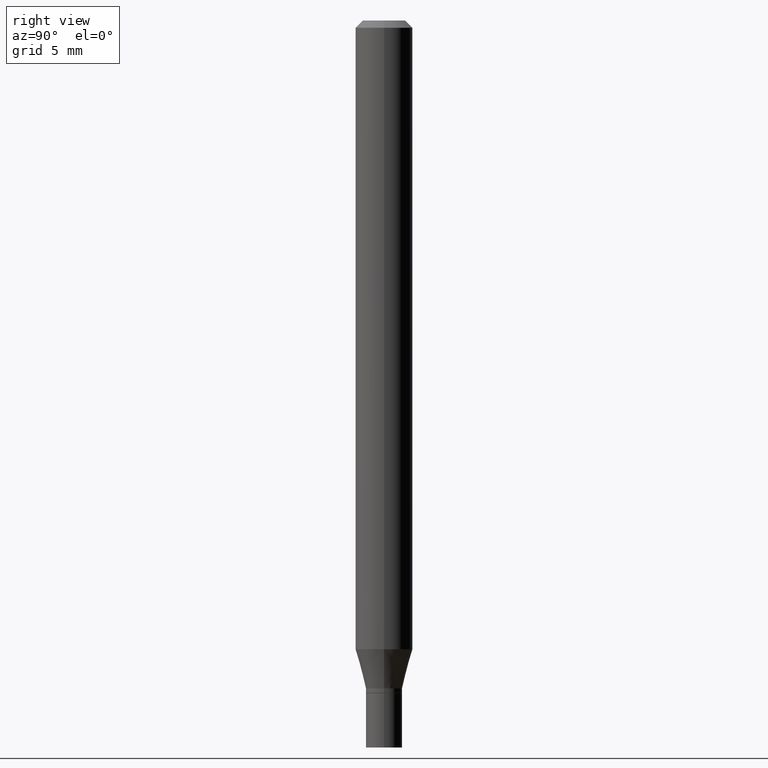
[diagram: clean part render]
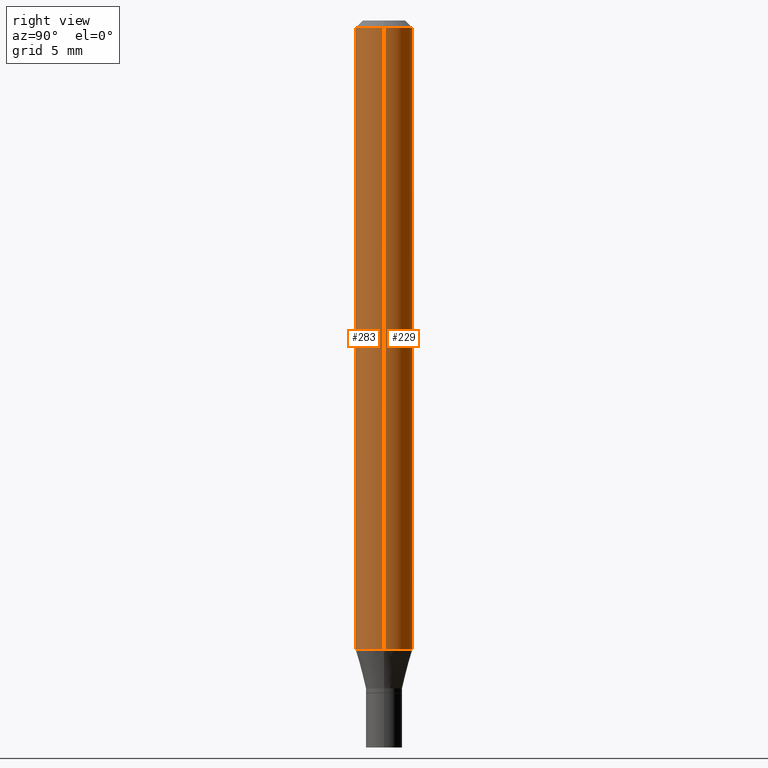
[diagram: same view with one multi-face feature highlighted, each face labeled with its STEP entity id]
A machine part, right view. The highlighted faces form ONE feature: a constant-radius fillet chain: 2 tangent blend faces with common blend radius 1.4999 mm. The faces share edges in the B-rep.
Their STEP definitions:
[1] entity #229 (Cylinder):
#1 = VECTOR ( 'NONE', #28, 39.37007874015748143 ) ;
#16 = CYLINDRICAL_SURFACE ( 'NONE', #210, 0.05904999999999999832 ) ;
#27 = LINE ( 'NONE', #166, #388 ) ;
#28 = DIRECTION ( 'NONE',  ( -2.445468806185136877E-29, 3.491481338843145188E-15, 1.000000000000000000 ) ) ;
#29 = AXIS2_PLACEMENT_3D ( 'NONE', #214, #138, #256 ) ;
#33 = DIRECTION ( 'NONE',  ( -2.445468806185136597E-29, 3.491481338843145583E-15, 1.000000000000000000 ) ) ;
#44 = FACE_OUTER_BOUND ( 'NONE', #58, .T. ) ;
#52 = DIRECTION ( 'NONE',  ( -2.445468806185136597E-29, 3.491481338843145583E-15, 1.000000000000000000 ) ) ;
#58 = EDGE_LOOP ( 'NONE', ( #87, #448, #111, #436 ) ) ;
#87 = ORIENTED_EDGE ( 'NONE', *, *, #288, .T. ) ;
#91 = LINE ( 'NONE', #343, #1 ) ;
#95 = CARTESIAN_POINT ( 'NONE',  ( 0.05904999999999999832, -4.647161662000212105E-16, -0.01499999999999999944 ) ) ;
#111 = ORIENTED_EDGE ( 'NONE', *, *, #188, .F. ) ;
#134 = AXIS2_PLACEMENT_3D ( 'NONE', #172, #33, #168 ) ;
#138 = DIRECTION ( 'NONE',  ( -2.445468806185136597E-29, 3.491481338843145583E-15, 1.000000000000000000 ) ) ;
#160 = DIRECTION ( 'NONE',  ( 1.000000000000000000, -6.982962677686266711E-15, 4.876176775795936353E-29 ) ) ;
#163 = CARTESIAN_POINT ( 'NONE',  ( 0.05904999999999999832, -4.941497379550503120E-15, -1.297201100016132980 ) ) ;
#166 = CARTESIAN_POINT ( 'NONE',  ( 0.05904999999999999832, -4.123439461173740327E-16, 2.879382386107500220E-30 ) ) ;
#168 = DIRECTION ( 'NONE',  ( 1.000000000000000000, -6.982962677686273021E-15, 0.000000000000000000 ) ) ;
#172 = CARTESIAN_POINT ( 'NONE',  ( 3.172264825438498801E-29, -4.529153433433129778E-15, -1.297201100016132980 ) ) ;
#188 = EDGE_CURVE ( 'NONE', #297, #332, #190, .T. ) ;
#190 = CIRCLE ( 'NONE', #29, 0.05904999999999999832 ) ;
#196 = CARTESIAN_POINT ( 'NONE',  ( -0.05904999999999999832, -1.871187341291549133E-15, -0.01499999999999999944 ) ) ;
#197 = CARTESIAN_POINT ( 'NONE',  ( 0.000000000000000000, 0.000000000000000000, 0.000000000000000000 ) ) ;
#210 = AXIS2_PLACEMENT_3D ( 'NONE', #197, #52, #160 ) ;
#214 = CARTESIAN_POINT ( 'NONE',  ( 3.668203209277705088E-31, -5.237222008264718399E-17, -0.01499999999999999944 ) ) ;
#229 = ADVANCED_FACE ( 'NONE', ( #44 ), #16, .T. ) ;
#242 = DIRECTION ( 'NONE',  ( -2.445468806185136877E-29, 3.491481338843145188E-15, 1.000000000000000000 ) ) ;
#256 = DIRECTION ( 'NONE',  ( 1.000000000000000000, -6.982962677686266711E-15, 0.000000000000000000 ) ) ;
#288 = EDGE_CURVE ( 'NONE', #400, #409, #434, .T. ) ;
#297 = VERTEX_POINT ( 'NONE', #95 ) ;
#332 = VERTEX_POINT ( 'NONE', #196 ) ;
#340 = EDGE_CURVE ( 'NONE', #409, #332, #91, .T. ) ;
#343 = CARTESIAN_POINT ( 'NONE',  ( -0.05904999999999999832, 4.195754854663391478E-16, -2.904631170795521892E-30 ) ) ;
#386 = CARTESIAN_POINT ( 'NONE',  ( -0.05904999999999999832, -4.109577947966790285E-15, -1.297201100016132980 ) ) ;
#388 = VECTOR ( 'NONE', #242, 39.37007874015748143 ) ;
#400 = VERTEX_POINT ( 'NONE', #163 ) ;
#409 = VERTEX_POINT ( 'NONE', #386 ) ;
#421 = EDGE_CURVE ( 'NONE', #400, #297, #27, .T. ) ;
#434 = CIRCLE ( 'NONE', #134, 0.05904999999999999832 ) ;
#436 = ORIENTED_EDGE ( 'NONE', *, *, #421, .F. ) ;
#448 = ORIENTED_EDGE ( 'NONE', *, *, #340, .T. ) ;
[2] entity #283 (Cylinder):
#1 = VECTOR ( 'NONE', #28, 39.37007874015748143 ) ;
#6 = ORIENTED_EDGE ( 'NONE', *, *, #340, .F. ) ;
#27 = LINE ( 'NONE', #166, #388 ) ;
#28 = DIRECTION ( 'NONE',  ( -2.445468806185136877E-29, 3.491481338843145188E-15, 1.000000000000000000 ) ) ;
#79 = DIRECTION ( 'NONE',  ( -2.445468806185136597E-29, 3.491481338843145583E-15, 1.000000000000000000 ) ) ;
#85 = EDGE_LOOP ( 'NONE', ( #6, #226, #293, #146 ) ) ;
#91 = LINE ( 'NONE', #343, #1 ) ;
#95 = CARTESIAN_POINT ( 'NONE',  ( 0.05904999999999999832, -4.647161662000212105E-16, -0.01499999999999999944 ) ) ;
#146 = ORIENTED_EDGE ( 'NONE', *, *, #466, .F. ) ;
#150 = DIRECTION ( 'NONE',  ( 1.000000000000000000, -6.982962677686266711E-15, 4.876176775795936353E-29 ) ) ;
#157 = AXIS2_PLACEMENT_3D ( 'NONE', #433, #449, #369 ) ;
#163 = CARTESIAN_POINT ( 'NONE',  ( 0.05904999999999999832, -4.941497379550503120E-15, -1.297201100016132980 ) ) ;
#166 = CARTESIAN_POINT ( 'NONE',  ( 0.05904999999999999832, -4.123439461173740327E-16, 2.879382386107500220E-30 ) ) ;
#184 = CIRCLE ( 'NONE', #374, 0.05904999999999999832 ) ;
#191 = AXIS2_PLACEMENT_3D ( 'NONE', #366, #233, #150 ) ;
#196 = CARTESIAN_POINT ( 'NONE',  ( -0.05904999999999999832, -1.871187341291549133E-15, -0.01499999999999999944 ) ) ;
#219 = DIRECTION ( 'NONE',  ( 1.000000000000000000, -6.982962677686266711E-15, 0.000000000000000000 ) ) ;
#224 = CYLINDRICAL_SURFACE ( 'NONE', #191, 0.05904999999999999832 ) ;
#226 = ORIENTED_EDGE ( 'NONE', *, *, #382, .T. ) ;
#233 = DIRECTION ( 'NONE',  ( -2.445468806185136597E-29, 3.491481338843145583E-15, 1.000000000000000000 ) ) ;
#242 = DIRECTION ( 'NONE',  ( -2.445468806185136877E-29, 3.491481338843145188E-15, 1.000000000000000000 ) ) ;
#283 = ADVANCED_FACE ( 'NONE', ( #410 ), #224, .T. ) ;
#293 = ORIENTED_EDGE ( 'NONE', *, *, #421, .T. ) ;
#297 = VERTEX_POINT ( 'NONE', #95 ) ;
#332 = VERTEX_POINT ( 'NONE', #196 ) ;
#340 = EDGE_CURVE ( 'NONE', #409, #332, #91, .T. ) ;
#343 = CARTESIAN_POINT ( 'NONE',  ( -0.05904999999999999832, 4.195754854663391478E-16, -2.904631170795521892E-30 ) ) ;
#356 = CARTESIAN_POINT ( 'NONE',  ( 3.668203209277705088E-31, -5.237222008264718399E-17, -0.01499999999999999944 ) ) ;
#366 = CARTESIAN_POINT ( 'NONE',  ( 0.000000000000000000, 0.000000000000000000, 0.000000000000000000 ) ) ;
#369 = DIRECTION ( 'NONE',  ( 1.000000000000000000, -6.982962677686273021E-15, 0.000000000000000000 ) ) ;
#374 = AXIS2_PLACEMENT_3D ( 'NONE', #356, #79, #219 ) ;
#382 = EDGE_CURVE ( 'NONE', #409, #400, #417, .T. ) ;
#386 = CARTESIAN_POINT ( 'NONE',  ( -0.05904999999999999832, -4.109577947966790285E-15, -1.297201100016132980 ) ) ;
#388 = VECTOR ( 'NONE', #242, 39.37007874015748143 ) ;
#400 = VERTEX_POINT ( 'NONE', #163 ) ;
#409 = VERTEX_POINT ( 'NONE', #386 ) ;
#410 = FACE_OUTER_BOUND ( 'NONE', #85, .T. ) ;
#417 = CIRCLE ( 'NONE', #157, 0.05904999999999999832 ) ;
#421 = EDGE_CURVE ( 'NONE', #400, #297, #27, .T. ) ;
#433 = CARTESIAN_POINT ( 'NONE',  ( 3.172264825438498801E-29, -4.529153433433129778E-15, -1.297201100016132980 ) ) ;
#449 = DIRECTION ( 'NONE',  ( -2.445468806185136597E-29, 3.491481338843145583E-15, 1.000000000000000000 ) ) ;
#466 = EDGE_CURVE ( 'NONE', #332, #297, #184, .T. ) ;